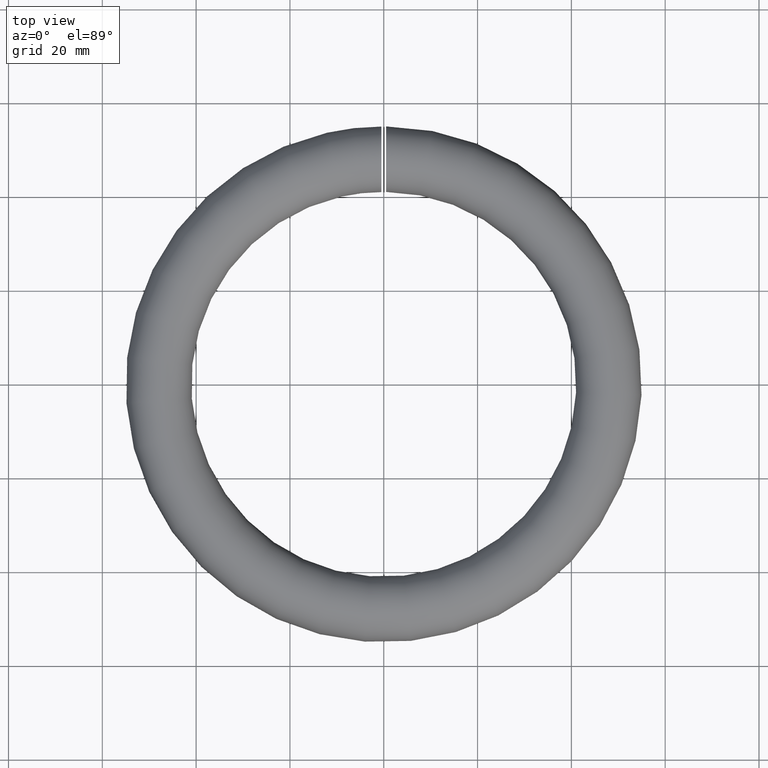
[diagram: clean part render]
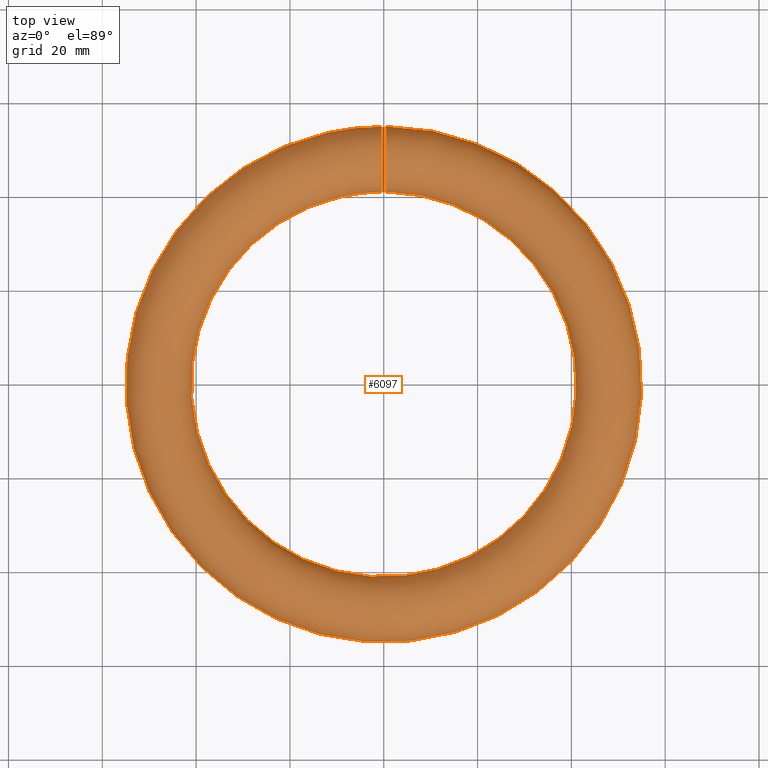
[diagram: same view with one face highlighted and labeled with its STEP entity id]
A machine part, top view. The second image highlights one B-rep face of the part: STEP entity #6097.
In plain terms, the highlighted toroidal blend (fillet) surface has major radius 48 mm and minor (blend) radius 7 mm.
Its self-contained STEP definition (entity closure, byte-faithful):
#3 = CARTESIAN_POINT ( 'NONE',  ( 0.4999999999999998900, 54.43742200694012500, -2.753706604304887200 ) ) ;
#28 = CARTESIAN_POINT ( 'NONE',  ( -0.4999999999999998900, 49.44086013496379200, 6.864732800239151400 ) ) ;
#70 = CARTESIAN_POINT ( 'NONE',  ( -0.5000000000000001100, 52.90975033169753100, -5.008412222523075400 ) ) ;
#107 = CARTESIAN_POINT ( 'NONE',  ( -0.4999999999999997800, 50.39690491488435200, -6.579948731866017500 ) ) ;
#122 = CARTESIAN_POINT ( 'NONE',  ( 0.5000000000000000000, 48.08309939478064600, 7.003264285528469000 ) ) ;
#166 = EDGE_CURVE ( 'NONE', #7889, #7889, #1088, .T. ) ;
#206 = CARTESIAN_POINT ( 'NONE',  ( 0.4999999999999998900, 41.13474352253734200, 1.455629264572266800 ) ) ;
#261 = CARTESIAN_POINT ( 'NONE',  ( -0.5000000000000001100, 45.89851767909701900, -6.681916157694731200 ) ) ;
#645 = CARTESIAN_POINT ( 'NONE',  ( 0.5000000000000003300, 50.60218694229404700, -6.501399018365241900 ) ) ;
#680 = CARTESIAN_POINT ( 'NONE',  ( 0.5000000000000000000, 54.32516026516099600, 3.028581550281047400 ) ) ;
#707 = CARTESIAN_POINT ( 'NONE',  ( -0.4999999999999998900, 41.20085908182814900, -1.738808296307355400 ) ) ;
#789 = CARTESIAN_POINT ( 'NONE',  ( -0.5000000000000000000, 41.78509687512495700, -3.234834123500216000 ) ) ;
#863 = CARTESIAN_POINT ( 'NONE',  ( -0.5000000000000000000, 42.77540168249492300, 4.684686157230924400 ) ) ;
#884 = CARTESIAN_POINT ( 'NONE',  ( 0.5000000000000001100, 54.72265793041531600, 1.956491396339134600 ) ) ;
#912 = CARTESIAN_POINT ( 'NONE',  ( -0.5000000000000000000, 53.77948999084727400, -3.952666809400799500 ) ) ;
#933 = CARTESIAN_POINT ( 'NONE',  ( 0.4999999999999997800, 48.99451575770027700, 6.943639430652259700 ) ) ;
#957 = CARTESIAN_POINT ( 'NONE',  ( -0.5000000000000000000, 42.21494560810403800, 3.952192645418990800 ) ) ;
#971 = CARTESIAN_POINT ( 'NONE',  ( 0.5000000000000000000, 43.09521274209406300, 5.018419043563925500 ) ) ;
#999 = CARTESIAN_POINT ( 'NONE',  ( -0.5000000000000001100, 54.93213701793832400, -0.9833541546939710300 ) ) ;
#1018 = CARTESIAN_POINT ( 'NONE',  ( 0.5000000000000000000, 44.76797499393265400, 6.214828329212710200 ) ) ;
#1042 = CARTESIAN_POINT ( 'NONE',  ( -0.5000000000000001100, 49.29677867247988100, -6.893523076586856000 ) ) ;
#1061 = CARTESIAN_POINT ( 'NONE',  ( 0.5000000000000000000, 46.70953574116757800, 6.895743951523531500 ) ) ;
#1088 = B_SPLINE_CURVE_WITH_KNOTS ( 'NONE', 3,
 ( #9934, #2561, #4499, #789, #9970, #4422, #6307, #707, #7226, #1956, #11190, #1835, #10170, #6538, #7541, #1995, #9225, #7504, #957, #7465, #863, #7422, #9356, #5565, #8418, #5521, #4702, #3683, #8465, #11106, #11988, #6459, #9186, #28, #1874, #8335, #11060, #3639, #7379, #1915, #9314, #3763, #8372, #12029, #10215, #4658, #2876, #8293, #11233, #4620, #3724, #11143, #5605, #2757, #999, #4582, #2839, #6498, #10256, #10127, #5642, #912, #2795, #9269, #70, #3807, #6579, #10294, #4742, #5688, #107, #6625, #1042, #9483, #5805, #4779, #8580, #261, #6821, #7581, #9393, #10452, #2033, #6785, #3039, #2194 ),
 .UNSPECIFIED., .T., .F.,
 ( 4, 2, 2, 2, 2, 2, 2, 2, 1, 2, 2, 2, 2, 2, 2, 2, 2, 2, 2, 2, 2, 2, 2, 2, 1, 2, 2, 2, 2, 2, 2, 2, 2, 2, 2, 2, 2, 2, 2, 2, 2, 2, 2, 4 ),
 ( 0.0000000000000000000, 0.001367709361221244700, 0.002051564041831866600, 0.002735418722442488500, 0.004103128083663733200, 0.005470837444884977900, 0.006838546806106221700, 0.007522401486716844500, 0.008206256167327468200, 0.008890110847938090900, 0.009573965528548712000, 0.01094167488976994200, 0.01230938425099117500, 0.01367709361221240400, 0.01436094829282301800, 0.01504480297343363400, 0.01641251233465488800, 0.01778022169587614000, 0.01846407637648675400, 0.01914793105709736800, 0.02051564041831858300, 0.02188334977953979400, 0.02325105914076101100, 0.02393491382137162200, 0.02461876850198223600, 0.02530262318259284700, 0.02598647786320346400, 0.02735418722442467900, 0.02803804190503529600, 0.02872189658564590700, 0.03008960594686712800, 0.03077346062747774200, 0.03145731530808835300, 0.03282502466930957400, 0.03419273403053080300, 0.03487658871114141700, 0.03556044339175204500, 0.03692815275297326600, 0.03829586211419448000, 0.03966357147541570100, 0.04034742615602632900, 0.04103128083663695100, 0.04239899019785817200, 0.04376669955907938600 ),
 .UNSPECIFIED. ) ;
#1607 = CARTESIAN_POINT ( 'NONE',  ( 0.5000000000000001100, 52.20469336070215900, -5.613271150119266500 ) ) ;
#1652 = CARTESIAN_POINT ( 'NONE',  ( 0.5000000000000002200, 53.61026872908969700, 4.208017008772551500 ) ) ;
#1661 = EDGE_CURVE ( 'NONE', #11941, #11941, #6168, .T. ) ;
#1835 = CARTESIAN_POINT ( 'NONE',  ( -0.5000000000000001100, 41.05247320458806800, 0.9913197909460773600 ) ) ;
#1853 = CARTESIAN_POINT ( 'NONE',  ( 0.5000000000000003300, 47.00728292638115800, -6.944660464554955200 ) ) ;
#1874 = CARTESIAN_POINT ( 'NONE',  ( -0.4999999999999998900, 50.09967643972950700, 6.680782666239255500 ) ) ;
#1890 = CARTESIAN_POINT ( 'NONE',  ( 0.5000000000000001100, 54.78381768222422500, 1.732503309675168100 ) ) ;
#1915 = CARTESIAN_POINT ( 'NONE',  ( -0.4999999999999998900, 51.95559078005178600, 5.791660288689453000 ) ) ;
#1956 = CARTESIAN_POINT ( 'NONE',  ( -0.4999999999999997800, 40.99260838372465800, -0.3853041791550642600 ) ) ;
#1995 = CARTESIAN_POINT ( 'NONE',  ( -0.5000000000000000000, 41.55680667541528100, 2.752544410784768300 ) ) ;
#2009 = CARTESIAN_POINT ( 'NONE',  ( 0.5000000000000002200, 41.86005680142253700, 3.374986942084165200 ) ) ;
#2033 = CARTESIAN_POINT ( 'NONE',  ( -0.5000000000000001100, 44.04396562403356800, -5.795303063685057800 ) ) ;
#2051 = CARTESIAN_POINT ( 'NONE',  ( 0.5000000000000002200, 41.07312971106342300, -1.055185122993857100 ) ) ;
#2091 = CARTESIAN_POINT ( 'NONE',  ( 0.5000000000000001100, 43.79661362028085100, 5.618589858884133600 ) ) ;
#2194 = CARTESIAN_POINT ( 'NONE',  ( -0.5000000000000000000, 42.68332484058485900, -4.556763746435012600 ) ) ;
#2536 = CARTESIAN_POINT ( 'NONE',  ( 0.4999999999999998900, 54.86121452906548500, -1.449325015611215400 ) ) ;
#2561 = CARTESIAN_POINT ( 'NONE',  ( -0.4999999999999998900, 42.38226266191928500, -4.205712320073458500 ) ) ;
#2576 = CARTESIAN_POINT ( 'NONE',  ( 0.4999999999999998900, 52.68667302118198100, 5.217696200368726200 ) ) ;
#2756 = EDGE_LOOP ( 'NONE', ( #5100 ) ) ;
#2757 = CARTESIAN_POINT ( 'NONE',  ( -0.5000000000000000000, 54.96050765486767600, -0.7561354345124957600 ) ) ;
#2772 = CARTESIAN_POINT ( 'NONE',  ( 0.5000000000000000000, 53.78590922824068300, -3.963058755264749600 ) ) ;
#2795 = CARTESIAN_POINT ( 'NONE',  ( -0.5000000000000000000, 53.64722094536080000, -4.139397785515353000 ) ) ;
#2815 = CARTESIAN_POINT ( 'NONE',  ( 0.5000000000000000000, 44.17127355909396200, 5.879681984860180700 ) ) ;
#2839 = CARTESIAN_POINT ( 'NONE',  ( -0.5000000000000000000, 54.80119442934903200, -1.662873605991689100 ) ) ;
#2853 = CARTESIAN_POINT ( 'NONE',  ( 0.5000000000000000000, 40.99168286481175000, -0.3706871652256134600 ) ) ;
#2876 = CARTESIAN_POINT ( 'NONE',  ( -0.5000000000000000000, 54.49674261797731800, 2.610571478515940000 ) ) ;
#2894 = CARTESIAN_POINT ( 'NONE',  ( 0.4999999999999998900, 41.54790112090122300, 2.760498724475066300 ) ) ;
#2938 = CARTESIAN_POINT ( 'NONE',  ( 0.5000000000000001100, 42.35478618724628300, 4.149318448206633600 ) ) ;
#3016 = EDGE_LOOP ( 'NONE', ( #10187 ) ) ;
#3039 = CARTESIAN_POINT ( 'NONE',  ( -0.5000000000000000000, 42.98438701925043400, -4.907815172796561300 ) ) ;
#3382 = CARTESIAN_POINT ( 'NONE',  ( 0.4999999999999998900, 52.89813303396488900, -5.019316596489965800 ) ) ;
#3424 = CARTESIAN_POINT ( 'NONE',  ( 0.5000000000000000000, 44.62843956514692000, -6.140365289389670500 ) ) ;
#3456 = CARTESIAN_POINT ( 'NONE',  ( 0.4999999999999998900, 55.00228408531970100, 0.3796448534011104800 ) ) ;
#3639 = CARTESIAN_POINT ( 'NONE',  ( -0.4999999999999998900, 50.95664397142793700, 6.347948102963277600 ) ) ;
#3661 = CARTESIAN_POINT ( 'NONE',  ( 0.5000000000000001100, 54.60425911583531900, -2.325164556332073800 ) ) ;
#3683 = CARTESIAN_POINT ( 'NONE',  ( -0.5000000000000002200, 46.25802971504571600, 6.784379703991740000 ) ) ;
#3699 = CARTESIAN_POINT ( 'NONE',  ( 0.5000000000000001100, 50.75559790860442200, 6.437815894959658900 ) ) ;
#3724 = CARTESIAN_POINT ( 'NONE',  ( -0.5000000000000000000, 54.91938540961012900, 1.069460638647491400 ) ) ;
#3739 = CARTESIAN_POINT ( 'NONE',  ( 0.5000000000000001100, 42.68332484058487400, -4.556763746435014400 ) ) ;
#3763 = CARTESIAN_POINT ( 'NONE',  ( -0.5000000000000000000, 53.01226579261093300, 4.905327277922693500 ) ) ;
#3781 = CARTESIAN_POINT ( 'NONE',  ( 0.5000000000000000000, 41.11191684591931800, -1.284060492182178500 ) ) ;
#3807 = CARTESIAN_POINT ( 'NONE',  ( -0.5000000000000000000, 52.20955797268340600, -5.610036035454642800 ) ) ;
#4320 = CARTESIAN_POINT ( 'NONE',  ( 0.5000000000000000000, 44.03934733840433300, -5.778277339424840300 ) ) ;
#4398 = CARTESIAN_POINT ( 'NONE',  ( 0.4999999999999998900, 54.67660376988280300, -2.108186296113421700 ) ) ;
#4422 = CARTESIAN_POINT ( 'NONE',  ( -0.5000000000000002200, 41.49763409066113000, -2.609825313427398100 ) ) ;
#4499 = CARTESIAN_POINT ( 'NONE',  ( -0.4999999999999997800, 42.12067771042860200, -3.830985770510805900 ) ) ;
#4582 = CARTESIAN_POINT ( 'NONE',  ( -0.5000000000000000000, 54.85248200137792900, -1.437120961497075700 ) ) ;
#4596 = CARTESIAN_POINT ( 'NONE',  ( 0.4999999999999998900, 51.95519465843182900, 5.778403966483894600 ) ) ;
#4620 = CARTESIAN_POINT ( 'NONE',  ( -0.5000000000000000000, 54.88025991367575800, 1.297325447450638800 ) ) ;
#4634 = CARTESIAN_POINT ( 'NONE',  ( 0.5000000000000003300, 48.37410886513608000, -7.004993144562156700 ) ) ;
#4658 = CARTESIAN_POINT ( 'NONE',  ( -0.5000000000000000000, 54.31199847442260900, 3.030209943962038000 ) ) ;
#4702 = CARTESIAN_POINT ( 'NONE',  ( -0.4999999999999998900, 46.03425479595481600, 6.723025614444620300 ) ) ;
#4742 = CARTESIAN_POINT ( 'NONE',  ( -0.5000000000000000000, 51.03348327136151900, -6.311556951947275200 ) ) ;
#4779 = CARTESIAN_POINT ( 'NONE',  ( -0.4999999999999998900, 47.01186995908406600, -6.945334948816907600 ) ) ;
#4835 = CARTESIAN_POINT ( 'NONE',  ( 0.5000000000000001100, 41.38229680638962500, 2.335564724290974900 ) ) ;
#5100 = ORIENTED_EDGE ( 'NONE', *, *, #166, .T. ) ;
#5254 = CARTESIAN_POINT ( 'NONE',  ( 0.5000000000000000000, 45.24237734708136600, -6.451453833810166600 ) ) ;
#5295 = CARTESIAN_POINT ( 'NONE',  ( 0.4999999999999997800, 47.91795380898402400, -7.014428978378994400 ) ) ;
#5521 = CARTESIAN_POINT ( 'NONE',  ( -0.5000000000000002200, 45.38066809175416700, 6.508744979280484300 ) ) ;
#5539 = CARTESIAN_POINT ( 'NONE',  ( 0.5000000000000000000, 42.98438709640196000, -4.907815262758541400 ) ) ;
#5565 = CARTESIAN_POINT ( 'NONE',  ( -0.4999999999999997800, 44.16564829288862600, 5.876129490165235200 ) ) ;
#5585 = CARTESIAN_POINT ( 'NONE',  ( 0.5000000000000000000, 50.10996764693027200, 6.677622569789018100 ) ) ;
#5605 = CARTESIAN_POINT ( 'NONE',  ( -0.4999999999999997800, 55.01220511618554100, -0.07350130840870051900 ) ) ;
#5642 = CARTESIAN_POINT ( 'NONE',  ( -0.5000000000000001100, 54.02660885351078700, -3.564413646246723300 ) ) ;
#5658 = CARTESIAN_POINT ( 'NONE',  ( 0.4999999999999998900, 45.61076241942941300, 6.584612755268444100 ) ) ;
#5688 = CARTESIAN_POINT ( 'NONE',  ( -0.4999999999999998900, 50.61366193569897100, -6.496806401784634300 ) ) ;
#5706 = CARTESIAN_POINT ( 'NONE',  ( 0.5000000000000002200, 45.39412205796327300, 6.502052900286307700 ) ) ;
#5746 = CARTESIAN_POINT ( 'NONE',  ( 0.5000000000000001100, 42.22243093749580100, 3.963146674988095700 ) ) ;
#5805 = CARTESIAN_POINT ( 'NONE',  ( -0.5000000000000001100, 47.92326081456679500, -7.014508971924471800 ) ) ;
#6097 = ADVANCED_FACE ( 'NONE', ( #10253, #7215 ), #8646, .T. ) ;
#6168 = B_SPLINE_CURVE_WITH_KNOTS ( 'NONE', 3,
 ( #10805, #5539, #12004, #9868, #4320, #8957, #3424, #5254, #9910, #10844, #1853, #5295, #4634, #11728, #8918, #11769, #6233, #645, #6200, #7164, #6476, #1607, #3382, #8071, #2772, #11081, #11809, #3, #3661, #4398, #2536, #7398, #9003, #3456, #9950, #10879, #1890, #884, #6277, #680, #7203, #1652, #8109, #2576, #9042, #4596, #8311, #9244, #3699, #11121, #5585, #6513, #933, #7443, #122, #9332, #9457, #1061, #7556, #5658, #5706, #11331, #1018, #2815, #2091, #971, #6641, #2938, #5746, #11206, #2009, #2894, #4835, #206, #8484, #9371, #2853, #2051, #3781, #7636, #10392, #7601, #11287, #10270, #9409, #3739 ),
 .UNSPECIFIED., .T., .F.,
 ( 4, 2, 2, 2, 2, 2, 2, 2, 1, 2, 2, 2, 2, 2, 2, 2, 2, 2, 2, 2, 2, 2, 2, 2, 1, 2, 2, 2, 2, 2, 2, 2, 2, 2, 2, 2, 2, 2, 2, 2, 2, 2, 2, 4 ),
 ( 0.0000000000000000000, 0.001367707699316710100, 0.002051561548975065000, 0.002735415398633420300, 0.004103123097950148200, 0.005470830797266877000, 0.006838538496583605700, 0.007522392346241970100, 0.008206246195900332800, 0.008890100045558698900, 0.009573953895217063300, 0.01094166159453381100, 0.01230936929385055700, 0.01367707699316730500, 0.01436093084282568300, 0.01504478469248406300, 0.01641249239180081100, 0.01778020009111756400, 0.01846405394077594100, 0.01914790779043431400, 0.02051561548975107400, 0.02188332318906783000, 0.02325103088838458700, 0.02393488473804297100, 0.02461873858770134700, 0.02530259243735972700, 0.02598644628701810400, 0.02735415398633486700, 0.02803800783599324400, 0.02872186168565162400, 0.03008956938496836600, 0.03077342323462673200, 0.03145727708428510500, 0.03282498478360183800, 0.03419269248291858400, 0.03487654633257694000, 0.03556040018223530200, 0.03692810788155202100, 0.03829581558086873200, 0.03966352328018545000, 0.04034737712984381300, 0.04103123097950216900, 0.04239893867881888000, 0.04376664637813559200 ),
 .UNSPECIFIED. ) ;
#6200 = CARTESIAN_POINT ( 'NONE',  ( 0.5000000000000000000, 51.02150837762469100, -6.317286158210435200 ) ) ;
#6233 = CARTESIAN_POINT ( 'NONE',  ( 0.5000000000000001100, 50.17580656968696900, -6.664130763326417300 ) ) ;
#6277 = CARTESIAN_POINT ( 'NONE',  ( 0.4999999999999998900, 54.50868009359943000, 2.611139232132312100 ) ) ;
#6307 = CARTESIAN_POINT ( 'NONE',  ( -0.5000000000000000000, 41.41471635025146000, -2.392992335632384100 ) ) ;
#6459 = CARTESIAN_POINT ( 'NONE',  ( -0.5000000000000000000, 48.06847182566458800, 7.014868909353970700 ) ) ;
#6476 = CARTESIAN_POINT ( 'NONE',  ( 0.4999999999999998900, 51.83095177940261100, -5.875161347667786400 ) ) ;
#6498 = CARTESIAN_POINT ( 'NONE',  ( -0.5000000000000001100, 54.61637215873217600, -2.324442143488581400 ) ) ;
#6513 = CARTESIAN_POINT ( 'NONE',  ( 0.5000000000000000000, 49.44407498341176000, 6.864393391584511200 ) ) ;
#6538 = CARTESIAN_POINT ( 'NONE',  ( -0.5000000000000000000, 41.31721003424448200, 2.105636891582874700 ) ) ;
#6579 = CARTESIAN_POINT ( 'NONE',  ( -0.5000000000000006700, 51.83341061446332500, -5.873189551405752200 ) ) ;
#6625 = CARTESIAN_POINT ( 'NONE',  ( -0.5000000000000000000, 49.74200147703691500, -6.794686694278771800 ) ) ;
#6641 = CARTESIAN_POINT ( 'NONE',  ( 0.4999999999999998900, 42.77772048687366200, 4.686810526095630500 ) ) ;
#6785 = CARTESIAN_POINT ( 'NONE',  ( -0.5000000000000001100, 43.31677694548066900, -5.225680867602063600 ) ) ;
#6821 = CARTESIAN_POINT ( 'NONE',  ( -0.5000000000000002200, 45.67823544218815400, -6.608685700491219200 ) ) ;
#7164 = CARTESIAN_POINT ( 'NONE',  ( 0.5000000000000001100, 51.22869429963493100, -6.213921482781969100 ) ) ;
#7203 = CARTESIAN_POINT ( 'NONE',  ( 0.5000000000000000000, 53.87740018092361500, 3.825958876401145000 ) ) ;
#7215 = FACE_OUTER_BOUND ( 'NONE', #2756, .T. ) ;
#7226 = CARTESIAN_POINT ( 'NONE',  ( -0.5000000000000000000, 41.10233758528544700, -1.293626055309698100 ) ) ;
#7379 = CARTESIAN_POINT ( 'NONE',  ( -0.5000000000000000000, 51.57100623581711600, 6.036671122260757200 ) ) ;
#7398 = CARTESIAN_POINT ( 'NONE',  ( 0.5000000000000000000, 54.94137389516006900, -0.9995928614101037300 ) ) ;
#7422 = CARTESIAN_POINT ( 'NONE',  ( -0.5000000000000002200, 43.09125275617643800, 5.014086947844453400 ) ) ;
#7443 = CARTESIAN_POINT ( 'NONE',  ( 0.5000000000000001100, 48.31198491047740600, 6.996650058826928900 ) ) ;
#7465 = CARTESIAN_POINT ( 'NONE',  ( -0.5000000000000000000, 42.34872014080456600, 4.141187540260220100 ) ) ;
#7504 = CARTESIAN_POINT ( 'NONE',  ( -0.4999999999999997800, 41.96900194770429200, 3.565867232966020600 ) ) ;
#7541 = CARTESIAN_POINT ( 'NONE',  ( -0.4999999999999998900, 41.39058902253020700, 2.325529669584240500 ) ) ;
#7556 = CARTESIAN_POINT ( 'NONE',  ( 0.4999999999999997800, 46.26432882699172200, 6.797557743228758800 ) ) ;
#7581 = CARTESIAN_POINT ( 'NONE',  ( -0.4999999999999997800, 45.25052207530386300, -6.442683551979792300 ) ) ;
#7601 = CARTESIAN_POINT ( 'NONE',  ( 0.5000000000000000000, 41.48285988758252800, -2.602698492978631000 ) ) ;
#7636 = CARTESIAN_POINT ( 'NONE',  ( 0.5000000000000001100, 41.21076888851436600, -1.732091721790057100 ) ) ;
#7889 = VERTEX_POINT ( 'NONE', #8992 ) ;
#8071 = CARTESIAN_POINT ( 'NONE',  ( 0.5000000000000001100, 53.22057088240807600, -4.683010751530067000 ) ) ;
#8109 = CARTESIAN_POINT ( 'NONE',  ( 0.5000000000000002200, 53.01573109002193000, 4.901782731313857300 ) ) ;
#8139 = CARTESIAN_POINT ( 'NONE',  ( 0.5000000000000000000, 42.68332484058487400, -4.556763746435013500 ) ) ;
#8293 = CARTESIAN_POINT ( 'NONE',  ( -0.5000000000000001100, 54.65995298523593200, 2.184079820267286200 ) ) ;
#8311 = CARTESIAN_POINT ( 'NONE',  ( 0.5000000000000000000, 51.56862186761716100, 6.024963279144350800 ) ) ;
#8335 = CARTESIAN_POINT ( 'NONE',  ( -0.5000000000000002200, 50.31652645355964600, 6.608698726265410000 ) ) ;
#8372 = CARTESIAN_POINT ( 'NONE',  ( -0.5000000000000001100, 53.60728955112134700, 4.211987139058361900 ) ) ;
#8418 = CARTESIAN_POINT ( 'NONE',  ( -0.4999999999999998900, 44.96341560306363800, 6.324989019912399300 ) ) ;
#8465 = CARTESIAN_POINT ( 'NONE',  ( -0.5000000000000001100, 46.70699379060066300, 6.883887715222591000 ) ) ;
#8484 = CARTESIAN_POINT ( 'NONE',  ( 0.5000000000000002200, 41.05320503144235300, 0.9965906045607136900 ) ) ;
#8580 = CARTESIAN_POINT ( 'NONE',  ( -0.4999999999999997800, 46.56260543741694800, -6.866788104663526400 ) ) ;
#8646 = TOROIDAL_SURFACE ( 'NONE', #9655, 48.00000000000000000, 6.999999999999998200 ) ;
#8918 = CARTESIAN_POINT ( 'NONE',  ( 0.5000000000000001100, 49.28811800051964600, -6.883799882487347000 ) ) ;
#8921 = CARTESIAN_POINT ( 'NONE',  ( 0.0000000000000000000, 0.0000000000000000000, 0.0000000000000000000 ) ) ;
#8957 = CARTESIAN_POINT ( 'NONE',  ( 0.5000000000000001100, 44.42678096007101400, -6.025362082832160100 ) ) ;
#8962 = DIRECTION ( 'NONE',  ( -0.0000000000000000000, -0.0000000000000000000, -1.000000000000000000 ) ) ;
#8992 = CARTESIAN_POINT ( 'NONE',  ( -0.5000000000000000000, 42.68332484058487400, -4.556763746435013500 ) ) ;
#9003 = CARTESIAN_POINT ( 'NONE',  ( 0.5000000000000000000, 55.01252020483441600, -0.07832857247461237600 ) ) ;
#9042 = CARTESIAN_POINT ( 'NONE',  ( 0.5000000000000000000, 52.14443505963863900, 5.644170270204344100 ) ) ;
#9186 = CARTESIAN_POINT ( 'NONE',  ( -0.5000000000000000000, 48.98983604944091000, 6.944681740929349100 ) ) ;
#9225 = CARTESIAN_POINT ( 'NONE',  ( -0.5000000000000000000, 41.74311606759799500, 3.169305040298563600 ) ) ;
#9244 = CARTESIAN_POINT ( 'NONE',  ( 0.4999999999999997800, 51.17199508894972800, 6.251286224692864700 ) ) ;
#9269 = CARTESIAN_POINT ( 'NONE',  ( -0.5000000000000000000, 53.22495649304224200, -4.677974111690110300 ) ) ;
#9314 = CARTESIAN_POINT ( 'NONE',  ( -0.4999999999999998900, 52.67539479811764400, 5.227576401370758900 ) ) ;
#9332 = CARTESIAN_POINT ( 'NONE',  ( 0.4999999999999997800, 47.62249929250811000, 6.993748846012315400 ) ) ;
#9356 = CARTESIAN_POINT ( 'NONE',  ( -0.5000000000000000000, 43.78407400045154000, 5.608781469660469200 ) ) ;
#9371 = CARTESIAN_POINT ( 'NONE',  ( 0.4999999999999998900, 40.98256592225875700, 0.08529889761848005700 ) ) ;
#9393 = CARTESIAN_POINT ( 'NONE',  ( -0.4999999999999998900, 45.04191876663791300, -6.349656119433490200 ) ) ;
#9409 = CARTESIAN_POINT ( 'NONE',  ( 0.5000000000000002200, 42.38226258476778000, -4.205712230111487300 ) ) ;
#9457 = CARTESIAN_POINT ( 'NONE',  ( 0.5000000000000002200, 47.39156045103841600, 6.977494162217854300 ) ) ;
#9483 = CARTESIAN_POINT ( 'NONE',  ( -0.5000000000000001100, 48.38936324264304300, -7.003945717674414900 ) ) ;
#9655 = AXIS2_PLACEMENT_3D ( 'NONE', #8921, #8962, #11813 ) ;
#9868 = CARTESIAN_POINT ( 'NONE',  ( 0.4999999999999998900, 43.85289773865784500, -5.645987294492099900 ) ) ;
#9910 = CARTESIAN_POINT ( 'NONE',  ( 0.4999999999999998900, 45.66733492140878100, -6.616697222151237200 ) ) ;
#9934 = CARTESIAN_POINT ( 'NONE',  ( -0.5000000000000000000, 42.68332484058485900, -4.556763746435012600 ) ) ;
#9950 = CARTESIAN_POINT ( 'NONE',  ( 0.5000000000000000000, 54.92093993021372000, 1.058804960976908800 ) ) ;
#9970 = CARTESIAN_POINT ( 'NONE',  ( -0.5000000000000000000, 41.68277308035005300, -3.030397726375170000 ) ) ;
#10127 = CARTESIAN_POINT ( 'NONE',  ( -0.5000000000000000000, 54.14125718489918200, -3.362900244899851700 ) ) ;
#10170 = CARTESIAN_POINT ( 'NONE',  ( -0.5000000000000000000, 41.13137760948437500, 1.440700022139594500 ) ) ;
#10187 = ORIENTED_EDGE ( 'NONE', *, *, #1661, .T. ) ;
#10215 = CARTESIAN_POINT ( 'NONE',  ( -0.4999999999999998900, 54.20818316798869300, 3.237700374327896500 ) ) ;
#10253 = FACE_OUTER_BOUND ( 'NONE', #3016, .T. ) ;
#10256 = CARTESIAN_POINT ( 'NONE',  ( -0.5000000000000002200, 54.45142128597089500, -2.749461643188430700 ) ) ;
#10270 = CARTESIAN_POINT ( 'NONE',  ( 0.5000000000000001100, 42.11877160100673500, -3.828755103807914000 ) ) ;
#10294 = CARTESIAN_POINT ( 'NONE',  ( -0.5000000000000001100, 51.23767393214232900, -6.209157454394726500 ) ) ;
#10392 = CARTESIAN_POINT ( 'NONE',  ( 0.5000000000000001100, 41.27090682683041900, -1.952441648590799400 ) ) ;
#10452 = CARTESIAN_POINT ( 'NONE',  ( -0.4999999999999998900, 44.43157745813018500, -6.041051103956562900 ) ) ;
#10805 = CARTESIAN_POINT ( 'NONE',  ( 0.5000000000000001100, 42.68332484058487400, -4.556763746435014400 ) ) ;
#10844 = CARTESIAN_POINT ( 'NONE',  ( 0.5000000000000001100, 46.54829995341907500, -6.863643582577205700 ) ) ;
#10879 = CARTESIAN_POINT ( 'NONE',  ( 0.5000000000000001100, 54.88276258215560700, 1.284108417145196200 ) ) ;
#11060 = CARTESIAN_POINT ( 'NONE',  ( -0.5000000000000000000, 50.74459951713671300, 6.442542624983189200 ) ) ;
#11081 = CARTESIAN_POINT ( 'NONE',  ( 0.4999999999999998900, 54.03117281313275600, -3.578727925941623100 ) ) ;
#11106 = CARTESIAN_POINT ( 'NONE',  ( -0.5000000000000002200, 46.93246432050482800, 6.922287206007148100 ) ) ;
#11121 = CARTESIAN_POINT ( 'NONE',  ( 0.4999999999999998900, 50.32919837871466500, 6.604213134162488800 ) ) ;
#11143 = CARTESIAN_POINT ( 'NONE',  ( -0.5000000000000002200, 55.00243816813958400, 0.3828826775795449200 ) ) ;
#11190 = CARTESIAN_POINT ( 'NONE',  ( -0.5000000000000002200, 40.98253354974595200, 0.08066542394286922700 ) ) ;
#11206 = CARTESIAN_POINT ( 'NONE',  ( 0.4999999999999997800, 41.97529832214281200, 3.576517669844669000 ) ) ;
#11233 = CARTESIAN_POINT ( 'NONE',  ( -0.5000000000000001100, 54.78081858639366400, 1.744111805513431500 ) ) ;
#11287 = CARTESIAN_POINT ( 'NONE',  ( 0.4999999999999998900, 41.66664452044899700, -3.023228842554659800 ) ) ;
#11331 = CARTESIAN_POINT ( 'NONE',  ( 0.5000000000000001100, 44.97270305315514300, 6.317059584926282100 ) ) ;
#11728 = CARTESIAN_POINT ( 'NONE',  ( 0.4999999999999998900, 49.05960019012357500, -6.922773881574238800 ) ) ;
#11769 = CARTESIAN_POINT ( 'NONE',  ( 0.5000000000000000000, 49.73549782595253500, -6.784674272881674500 ) ) ;
#11809 = CARTESIAN_POINT ( 'NONE',  ( 0.4999999999999998900, 54.34264958156778400, -2.965497446020194600 ) ) ;
#11813 = DIRECTION ( 'NONE',  ( -1.000000000000000000, 0.0000000000000000000, 0.0000000000000000000 ) ) ;
#11941 = VERTEX_POINT ( 'NONE', #8139 ) ;
#11988 = CARTESIAN_POINT ( 'NONE',  ( -0.4999999999999998900, 47.61177028006529400, 7.004238913435995300 ) ) ;
#12004 = CARTESIAN_POINT ( 'NONE',  ( 0.4999999999999995600, 43.31486465803639200, -5.223459044237413800 ) ) ;
#12029 = CARTESIAN_POINT ( 'NONE',  ( -0.5000000000000001100, 53.86935076970915000, 3.838618163981824900 ) ) ;